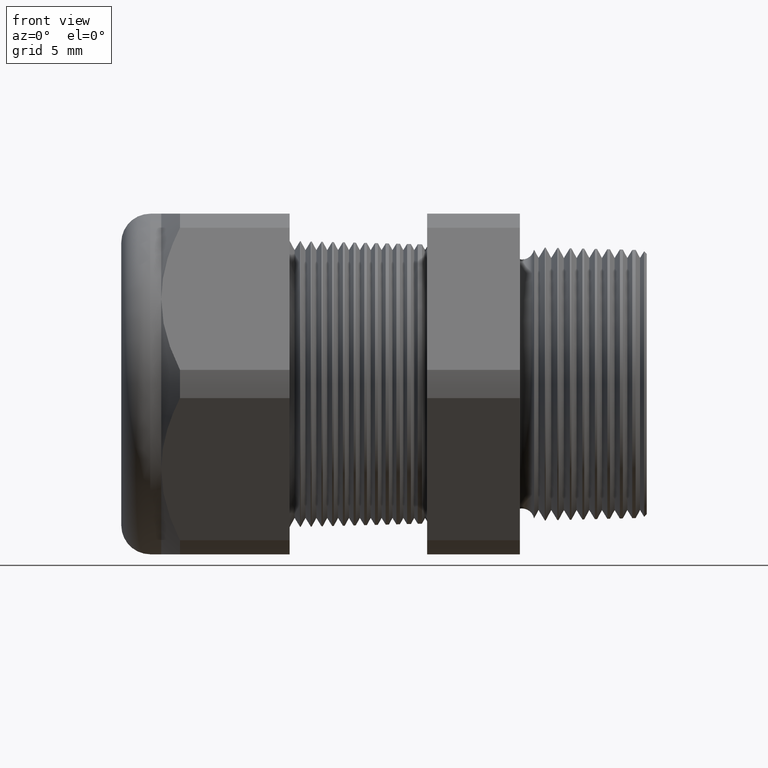
[diagram: clean part render]
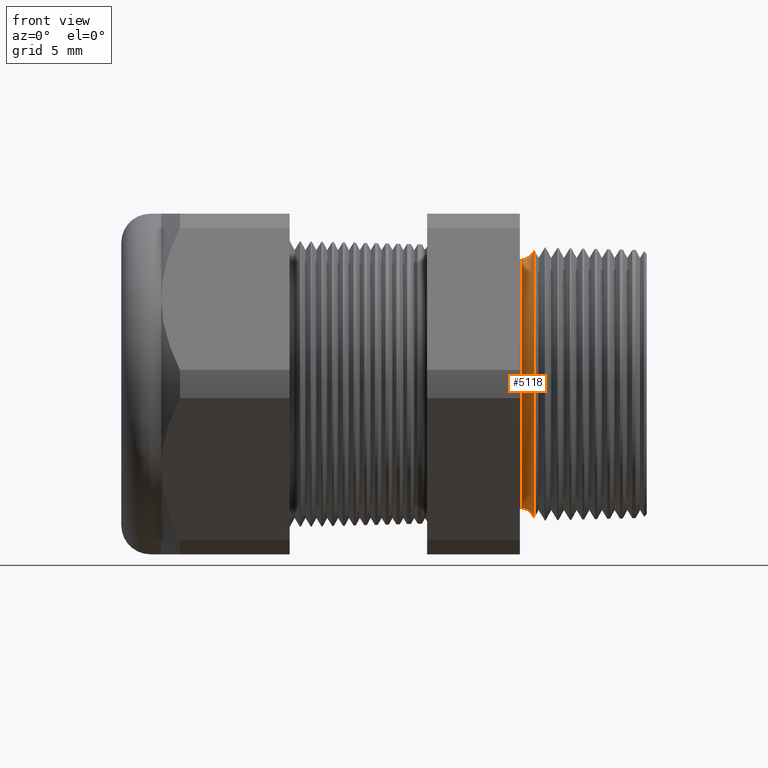
[diagram: same view with one face highlighted and labeled with its STEP entity id]
A machine part, front view. The second image highlights one B-rep face of the part: STEP entity #5118.
In plain terms, the highlighted toroidal blend (fillet) surface has major radius 9.6104 mm and minor (blend) radius 0.889 mm.
Its self-contained STEP definition (entity closure, byte-faithful):
#24 = VERTEX_POINT ( 'NONE', #3910 ) ;
#26 = VERTEX_POINT ( 'NONE', #3909 ) ;
#1925 = DIRECTION ( 'NONE',  ( 0.0000000000000000000, 0.0000000000000000000, -1.000000000000000000 ) ) ;
#1926 = DIRECTION ( 'NONE',  ( 0.0000000000000000000, -1.000000000000000000, 0.0000000000000000000 ) ) ;
#1927 = CARTESIAN_POINT ( 'NONE',  ( -0.3049999999999999400, 0.0000000000000000000, -0.3783605994438361000 ) ) ;
#1928 = AXIS2_PLACEMENT_3D ( 'NONE', #1927, #1926, #1925 ) ;
#1929 = CIRCLE ( 'NONE', #1928, 0.03499999999999996900 ) ;
#1931 = CARTESIAN_POINT ( 'NONE',  ( -0.3049999999999999400, 0.0000000000000000000, -0.3433605994438361200 ) ) ;
#1932 = CARTESIAN_POINT ( 'NONE',  ( -0.2708463023710456800, 4.539893538562447500E-017, -0.3707104400814421600 ) ) ;
#1951 = CARTESIAN_POINT ( 'NONE',  ( -0.2708463023710456800, 0.0000000000000000000, 0.0000000000000000000 ) ) ;
#1952 = CIRCLE ( 'NONE', #2016, 0.3707104400814421600 ) ;
#1965 = DIRECTION ( 'NONE',  ( 0.0000000000000000000, 0.0000000000000000000, -1.000000000000000000 ) ) ;
#1966 = DIRECTION ( 'NONE',  ( 1.000000000000000000, 0.0000000000000000000, 0.0000000000000000000 ) ) ;
#1967 = CARTESIAN_POINT ( 'NONE',  ( -0.3049999999999999400, 0.0000000000000000000, 0.0000000000000000000 ) ) ;
#1968 = AXIS2_PLACEMENT_3D ( 'NONE', #1967, #1966, #1965 ) ;
#1969 = TOROIDAL_SURFACE ( 'NONE', #1968, 0.3783605994438361000, 0.03499999999999994800 ) ;
#1970 = FACE_OUTER_BOUND ( 'NONE', #2812, .T. ) ;
#2014 = DIRECTION ( 'NONE',  ( 0.0000000000000000000, 0.0000000000000000000, 1.000000000000000000 ) ) ;
#2015 = DIRECTION ( 'NONE',  ( 1.000000000000000000, 0.0000000000000000000, 0.0000000000000000000 ) ) ;
#2016 = AXIS2_PLACEMENT_3D ( 'NONE', #1951, #2015, #2014 ) ;
#2125 = EDGE_CURVE ( 'NONE', #26, #24, #3899, .T. ) ;
#2215 = ORIENTED_EDGE ( 'NONE', *, *, #5102, .F. ) ;
#2217 = ORIENTED_EDGE ( 'NONE', *, *, #5123, .F. ) ;
#2225 = ORIENTED_EDGE ( 'NONE', *, *, #2125, .T. ) ;
#2227 = ORIENTED_EDGE ( 'NONE', *, *, #2230, .T. ) ;
#2230 = EDGE_CURVE ( 'NONE', #24, #5098, #4085, .T. ) ;
#2812 = EDGE_LOOP ( 'NONE', ( #2225, #2227, #2215, #2217 ) ) ;
#3895 = DIRECTION ( 'NONE',  ( 0.0000000000000000000, 1.224646799147352700E-016, 1.000000000000000000 ) ) ;
#3896 = DIRECTION ( 'NONE',  ( 0.0000000000000000000, 1.000000000000000000, -1.224646799147353200E-016 ) ) ;
#3897 = CARTESIAN_POINT ( 'NONE',  ( -0.3049999999999999400, 4.633580970323677100E-017, 0.3783605994438361000 ) ) ;
#3898 = AXIS2_PLACEMENT_3D ( 'NONE', #3897, #3896, #3895 ) ;
#3899 = CIRCLE ( 'NONE', #3898, 0.03499999999999996900 ) ;
#3909 = CARTESIAN_POINT ( 'NONE',  ( -0.2708463023710456800, 0.0000000000000000000, 0.3707104400814421600 ) ) ;
#3910 = CARTESIAN_POINT ( 'NONE',  ( -0.3049999999999999400, 4.204954590622103200E-017, 0.3433605994438361200 ) ) ;
#4081 = DIRECTION ( 'NONE',  ( 0.0000000000000000000, 0.0000000000000000000, -1.000000000000000000 ) ) ;
#4082 = DIRECTION ( 'NONE',  ( 1.000000000000000000, 0.0000000000000000000, 0.0000000000000000000 ) ) ;
#4083 = CARTESIAN_POINT ( 'NONE',  ( -0.3049999999999999400, 0.0000000000000000000, 0.0000000000000000000 ) ) ;
#4084 = AXIS2_PLACEMENT_3D ( 'NONE', #4083, #4082, #4081 ) ;
#4085 = CIRCLE ( 'NONE', #4084, 0.3433605994438361200 ) ;
#5096 = VERTEX_POINT ( 'NONE', #1932 ) ;
#5098 = VERTEX_POINT ( 'NONE', #1931 ) ;
#5102 = EDGE_CURVE ( 'NONE', #5096, #5098, #1929, .T. ) ;
#5118 = ADVANCED_FACE ( 'NONE', ( #1970 ), #1969, .F. ) ;
#5123 = EDGE_CURVE ( 'NONE', #26, #5096, #1952, .T. ) ;